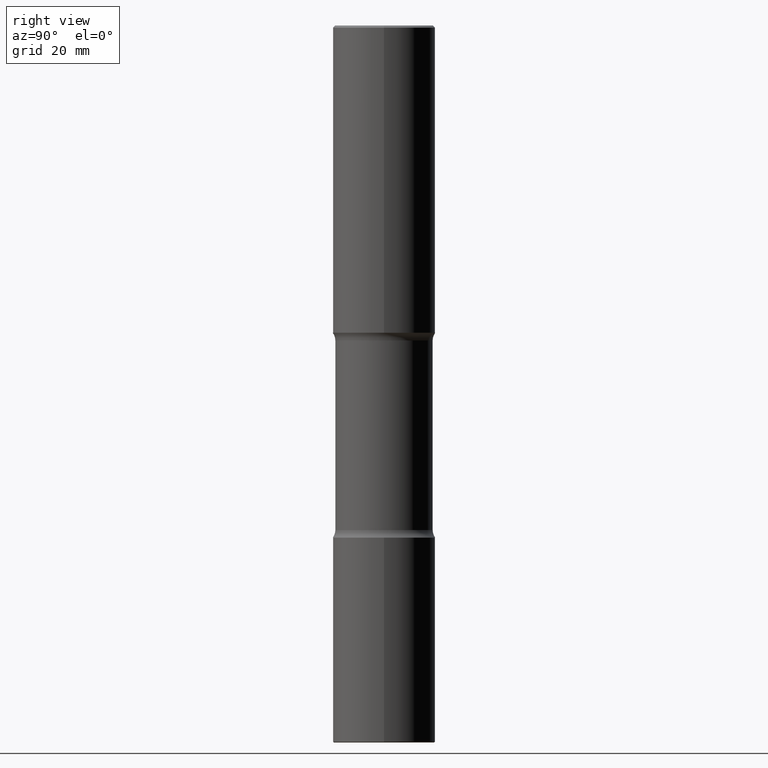
[diagram: clean part render]
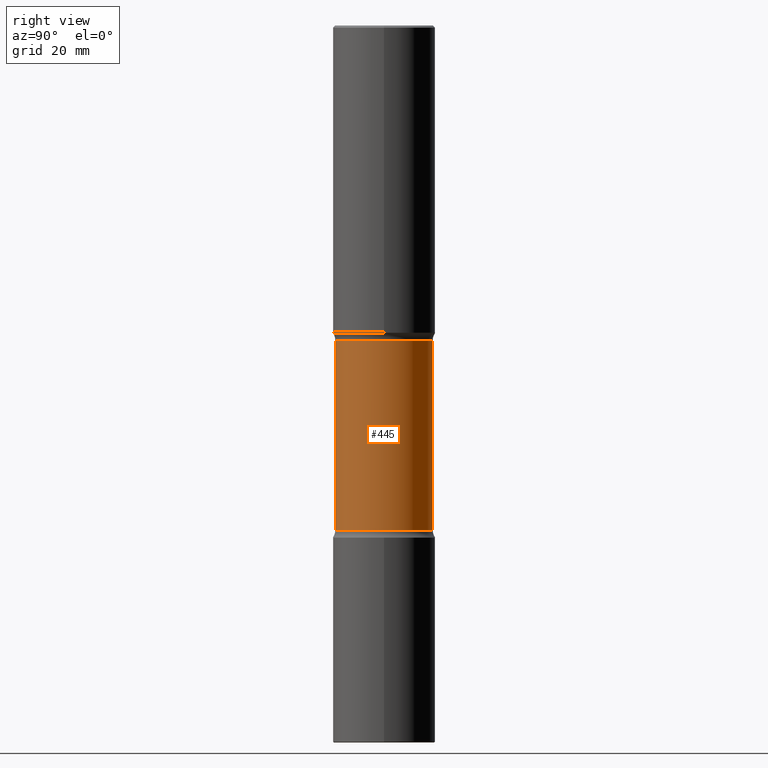
[diagram: same view with one face highlighted and labeled with its STEP entity id]
A machine part, right view. The second image highlights one B-rep face of the part: STEP entity #445.
In plain terms, the highlighted cylindrical surface (partial cylindrical patch) has radius 12.065 mm, axis along (0, -0, -1).
Its self-contained STEP definition (entity closure, byte-faithful):
#60 = CARTESIAN_POINT ( 'NONE',  ( 3.316907271901051235E-15, 0.4749999999999892641, -3.075000000000001510 ) ) ;
#63 = AXIS2_PLACEMENT_3D ( 'NONE', #250, #358, #521 ) ;
#66 = ORIENTED_EDGE ( 'NONE', *, *, #269, .T. ) ;
#68 = CYLINDRICAL_SURFACE ( 'NONE', #129, 0.4750000000000000333 ) ;
#82 = DIRECTION ( 'NONE',  ( 2.495638921910708014E-29, -3.419634877618474112E-15, -1.000000000000000000 ) ) ;
#88 = ORIENTED_EDGE ( 'NONE', *, *, #463, .F. ) ;
#98 = VECTOR ( 'NONE', #460, 39.37007874015748143 ) ;
#99 = AXIS2_PLACEMENT_3D ( 'NONE', #350, #82, #254 ) ;
#100 = LINE ( 'NONE', #337, #394 ) ;
#105 = CARTESIAN_POINT ( 'NONE',  ( -3.344492773913550718E-15, -0.4750000000000109690, -3.074999999999998401 ) ) ;
#129 = AXIS2_PLACEMENT_3D ( 'NONE', #504, #243, #547 ) ;
#150 = DIRECTION ( 'NONE',  ( 2.495638921910708014E-29, -3.419634877618474112E-15, -1.000000000000000000 ) ) ;
#157 = LINE ( 'NONE', #284, #98 ) ;
#169 = VERTEX_POINT ( 'NONE', #428 ) ;
#173 = ORIENTED_EDGE ( 'NONE', *, *, #542, .F. ) ;
#243 = DIRECTION ( 'NONE',  ( 2.495638921910708014E-29, -3.419634877618474112E-15, -1.000000000000000000 ) ) ;
#250 = CARTESIAN_POINT ( 'NONE',  ( 7.423239106247569958E-29, -1.087460955480016368E-14, -3.074999999999999734 ) ) ;
#254 = DIRECTION ( 'NONE',  ( 6.982962677686265133E-15, 1.000000000000000000, -2.300503573612011422E-15 ) ) ;
#264 = CIRCLE ( 'NONE', #99, 0.4749999999999999778 ) ;
#269 = EDGE_CURVE ( 'NONE', #387, #482, #355, .T. ) ;
#284 = CARTESIAN_POINT ( 'NONE',  ( -3.258736548941304889E-15, -0.4750000000000243472, -6.999999999999997335 ) ) ;
#337 = CARTESIAN_POINT ( 'NONE',  ( 3.316907271901148659E-15, 0.4749999999999757194, -7.000000000000000000 ) ) ;
#350 = CARTESIAN_POINT ( 'NONE',  ( 1.204017111178237438E-28, -1.720093407839433761E-14, -4.924999999999998046 ) ) ;
#355 = CIRCLE ( 'NONE', #63, 0.4750000000000001443 ) ;
#358 = DIRECTION ( 'NONE',  ( 2.495638921910708014E-29, -3.419634877618474112E-15, -1.000000000000000000 ) ) ;
#387 = VERTEX_POINT ( 'NONE', #60 ) ;
#393 = EDGE_LOOP ( 'NONE', ( #66, #535, #173, #88 ) ) ;
#394 = VECTOR ( 'NONE', #150, 39.37007874015748143 ) ;
#428 = CARTESIAN_POINT ( 'NONE',  ( 3.316907271901096594E-15, 0.4749999999999827693, -4.924999999999999822 ) ) ;
#443 = EDGE_CURVE ( 'NONE', #482, #480, #157, .T. ) ;
#445 = ADVANCED_FACE ( 'NONE', ( #538 ), #68, .T. ) ;
#460 = DIRECTION ( 'NONE',  ( 2.495638921910708014E-29, -3.419634877618474112E-15, -1.000000000000000000 ) ) ;
#463 = EDGE_CURVE ( 'NONE', #387, #169, #100, .T. ) ;
#480 = VERTEX_POINT ( 'NONE', #496 ) ;
#482 = VERTEX_POINT ( 'NONE', #105 ) ;
#496 = CARTESIAN_POINT ( 'NONE',  ( -3.344492773913500625E-15, -0.4750000000000171863, -4.924999999999997158 ) ) ;
#504 = CARTESIAN_POINT ( 'NONE',  ( 1.721862187474709565E-28, -2.429667644945267101E-14, -6.999999999999998224 ) ) ;
#521 = DIRECTION ( 'NONE',  ( 6.982962677686265133E-15, 1.000000000000000000, -3.450755360418015555E-15 ) ) ;
#535 = ORIENTED_EDGE ( 'NONE', *, *, #443, .T. ) ;
#538 = FACE_OUTER_BOUND ( 'NONE', #393, .T. ) ;
#542 = EDGE_CURVE ( 'NONE', #169, #480, #264, .T. ) ;
#547 = DIRECTION ( 'NONE',  ( 6.982962677686265922E-15, 1.000000000000000000, -2.300503573612011028E-15 ) ) ;